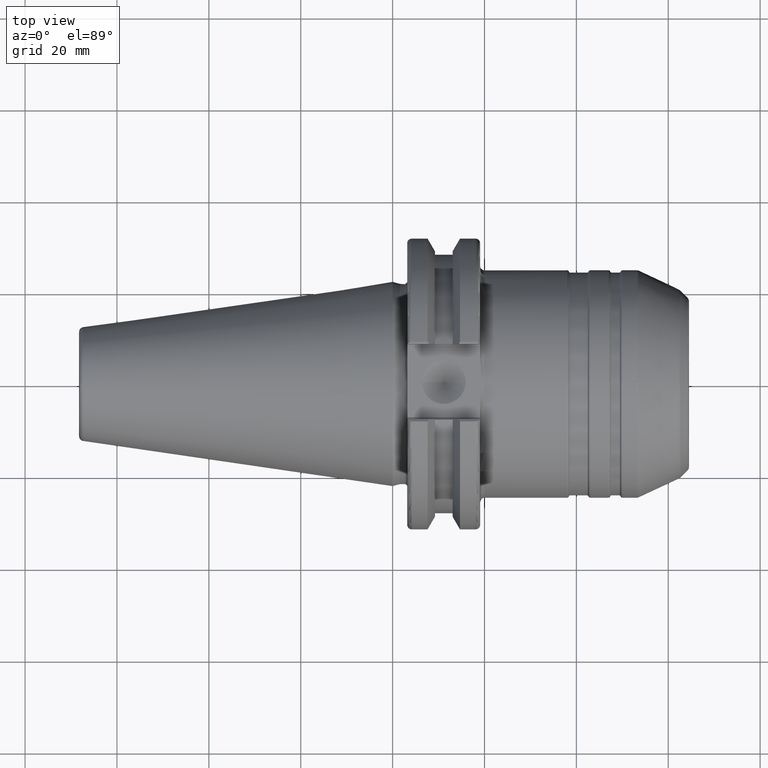
[diagram: clean part render]
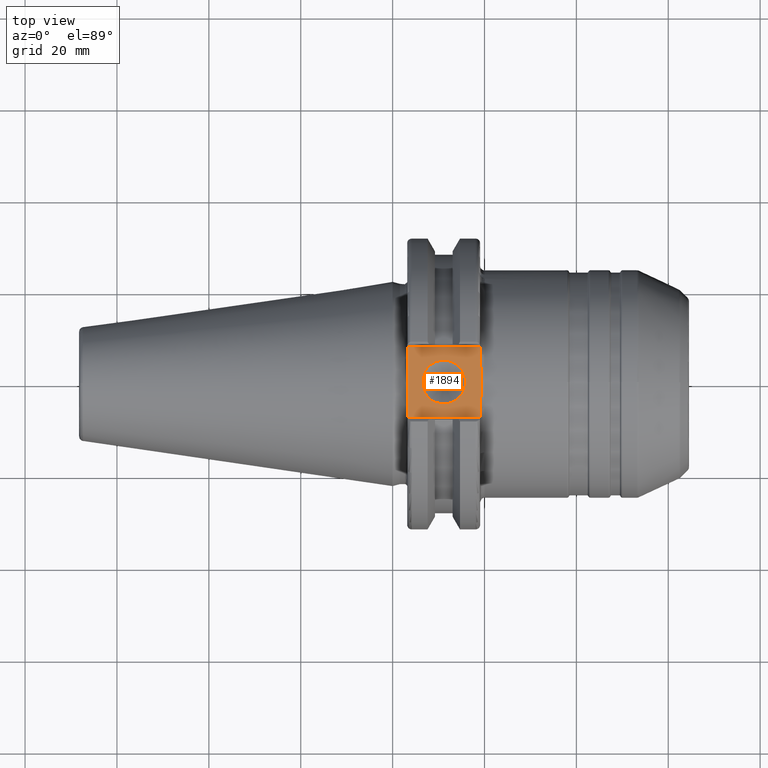
[diagram: same view with one face highlighted and labeled with its STEP entity id]
A machine part, top view. The second image highlights one B-rep face of the part: STEP entity #1894.
In plain terms, the highlighted planar face has unit normal (0, 0, 1).
Its self-contained STEP definition (entity closure, byte-faithful):
#76=FACE_BOUND('',#591,.T.);
#110=PLANE('',#2168);
#119=B_SPLINE_CURVE_WITH_KNOTS('',3,(#3067,#3068,#3069,#3070,#3071,#3072,
#3073,#3074,#3075,#3076),.UNSPECIFIED.,.F.,.F.,(4,2,2,2,4),(1.28229186042809,
1.47392183654147,1.862003561099,2.25008528565653,2.44171526176991),
 .UNSPECIFIED.);
#172=LINE('',#3205,#261);
#179=LINE('',#3226,#268);
#204=LINE('',#3535,#293);
#233=LINE('',#3785,#322);
#235=LINE('',#3788,#324);
#261=VECTOR('',#2382,10.);
#268=VECTOR('',#2399,10.);
#293=VECTOR('',#2582,10.);
#322=VECTOR('',#2673,10.);
#324=VECTOR('',#2677,10.);
#471=FACE_OUTER_BOUND('',#590,.T.);
#590=EDGE_LOOP('',(#1752,#1753,#1754,#1755,#1756,#1757));
#591=EDGE_LOOP('',(#1758));
#710=CIRCLE('',#2151,4.7625);
#778=VERTEX_POINT('',#3065);
#779=VERTEX_POINT('',#3066);
#784=VERTEX_POINT('',#3204);
#793=VERTEX_POINT('',#3224);
#844=VERTEX_POINT('',#3532);
#845=VERTEX_POINT('',#3534);
#906=VERTEX_POINT('',#3845);
#991=EDGE_CURVE('',#778,#779,#119,.F.);
#1001=EDGE_CURVE('',#778,#784,#172,.T.);
#1012=EDGE_CURVE('',#793,#779,#179,.T.);
#1091=EDGE_CURVE('',#844,#845,#204,.T.);
#1159=EDGE_CURVE('',#784,#844,#233,.T.);
#1161=EDGE_CURVE('',#845,#793,#235,.T.);
#1183=EDGE_CURVE('',#906,#906,#710,.T.);
#1752=ORIENTED_EDGE('',*,*,#1159,.F.);
#1753=ORIENTED_EDGE('',*,*,#1001,.F.);
#1754=ORIENTED_EDGE('',*,*,#991,.T.);
#1755=ORIENTED_EDGE('',*,*,#1012,.F.);
#1756=ORIENTED_EDGE('',*,*,#1161,.F.);
#1757=ORIENTED_EDGE('',*,*,#1091,.F.);
#1758=ORIENTED_EDGE('',*,*,#1183,.T.);
#1894=ADVANCED_FACE('',(#471,#76),#110,.T.);
#2151=AXIS2_PLACEMENT_3D('',#3846,#2720,#2721);
#2168=AXIS2_PLACEMENT_3D('',#3864,#2755,#2756);
#2382=DIRECTION('',(0.,-1.,0.));
#2399=DIRECTION('',(0.,-1.,0.));
#2582=DIRECTION('',(0.,1.,0.));
#2673=DIRECTION('',(-1.,1.31581988103722E-16,0.));
#2677=DIRECTION('',(1.,0.,0.));
#2720=DIRECTION('center_axis',(0.,0.,-1.));
#2721=DIRECTION('ref_axis',(1.,0.,0.));
#2755=DIRECTION('center_axis',(0.,0.,1.));
#2756=DIRECTION('ref_axis',(1.,0.,0.));
#3065=CARTESIAN_POINT('',(19.05,-6.16948133962654,25.));
#3066=CARTESIAN_POINT('',(19.05,6.16948133962654,25.));
#3067=CARTESIAN_POINT('Ctrl Pts',(19.05,6.16948133962654,25.));
#3068=CARTESIAN_POINT('Ctrl Pts',(19.05,5.53071475258195,25.));
#3069=CARTESIAN_POINT('Ctrl Pts',(19.0917093675371,4.76533047486056,25.));
#3070=CARTESIAN_POINT('Ctrl Pts',(19.2334466867335,2.83816328553263,25.));
#3071=CARTESIAN_POINT('Ctrl Pts',(19.3885621722339,1.29360574852511,25.));
#3072=CARTESIAN_POINT('Ctrl Pts',(19.3885621722339,-1.29360574852511,25.));
#3073=CARTESIAN_POINT('Ctrl Pts',(19.2334466867335,-2.83816328553263,25.));
#3074=CARTESIAN_POINT('Ctrl Pts',(19.0917093675371,-4.76533047486056,25.));
#3075=CARTESIAN_POINT('Ctrl Pts',(19.05,-5.53071475258195,25.));
#3076=CARTESIAN_POINT('Ctrl Pts',(19.05,-6.16948133962654,25.));
#3204=CARTESIAN_POINT('',(19.05,-7.69,25.));
#3205=CARTESIAN_POINT('',(19.05,0.,25.));
#3224=CARTESIAN_POINT('',(19.05,7.69,25.));
#3226=CARTESIAN_POINT('',(19.05,0.,25.));
#3532=CARTESIAN_POINT('',(3.175,-7.68999999999999,25.));
#3534=CARTESIAN_POINT('',(3.175,7.69,25.));
#3535=CARTESIAN_POINT('',(3.175,15.875,25.));
#3785=CARTESIAN_POINT('',(9.44125,-7.69,25.));
#3788=CARTESIAN_POINT('',(17.87875,7.69,25.));
#3845=CARTESIAN_POINT('',(6.3716,-5.83238038093927E-16,25.));
#3846=CARTESIAN_POINT('Origin',(11.1341,0.,25.));
#3864=CARTESIAN_POINT('Origin',(15.7075,0.,25.));